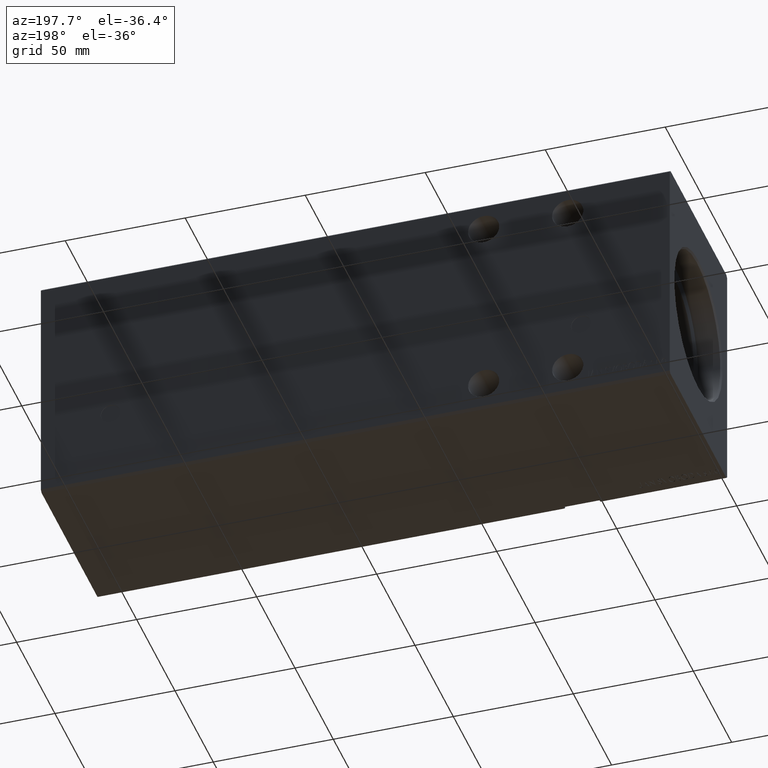
[diagram: clean part render]
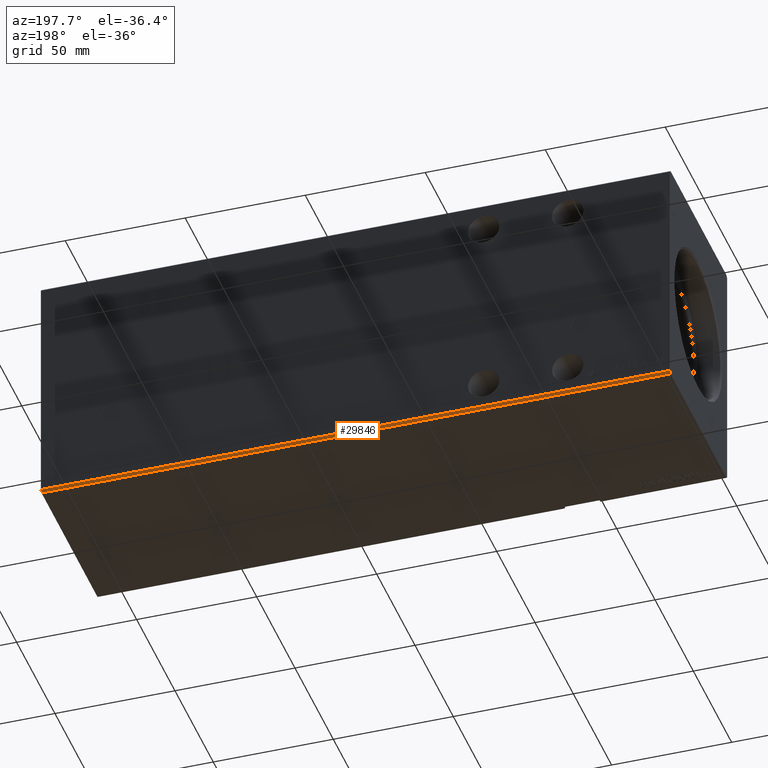
[diagram: same view with one face highlighted and labeled with its STEP entity id]
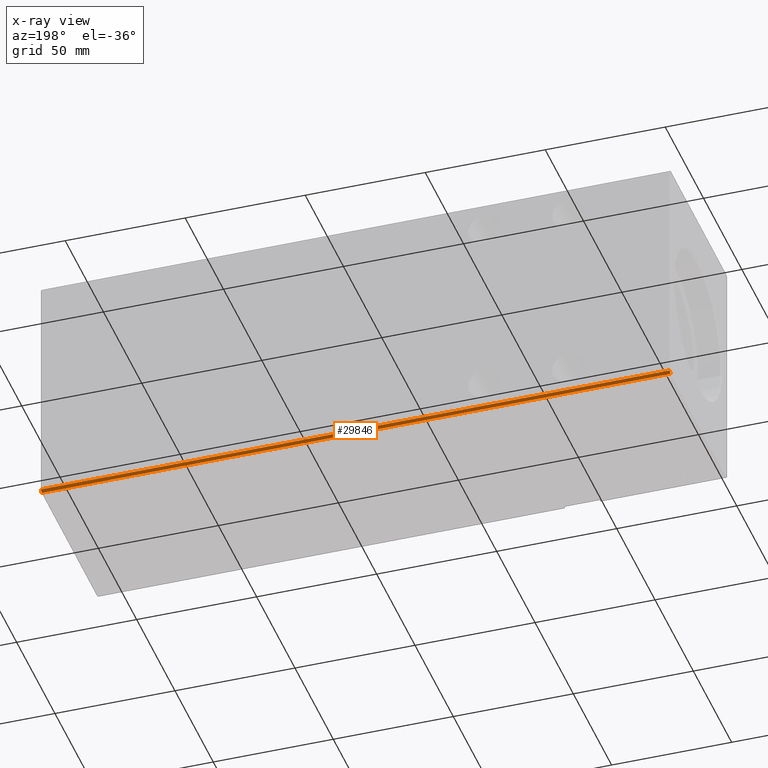
[diagram: x-ray of the same camera — body ghosted, the highlighted face saturated]
A machine part, auxiliary view. The second image highlights one B-rep face of the part: STEP entity #29846.
The next image is the same camera in x-ray: the body ghosted, the highlighted face saturated — about 0% of this face is hidden behind the body in this view.
In plain terms, the highlighted planar face has unit normal (0, -0.7071, 0.7071).
Its self-contained STEP definition (entity closure, byte-faithful):
#1434 = ORIENTED_EDGE ( 'NONE', *, *, #10390, .T. ) ;
#3205 = ORIENTED_EDGE ( 'NONE', *, *, #28127, .F. ) ;
#3431 = DIRECTION ( 'NONE',  ( -1.000000000000000000, -0.000000000000000000, -0.000000000000000000 ) ) ;
#5292 = EDGE_CURVE ( 'NONE', #12894, #12572, #32323, .T. ) ;
#5352 = PLANE ( 'NONE',  #13970 ) ;
#5982 = LINE ( 'NONE', #22327, #14498 ) ;
#8805 = VECTOR ( 'NONE', #3431, 1000.000000000000000 ) ;
#10390 = EDGE_CURVE ( 'NONE', #12572, #35652, #11188, .T. ) ;
#11188 = LINE ( 'NONE', #17357, #40891 ) ;
#11310 = DIRECTION ( 'NONE',  ( 0.000000000000000000, -0.7071067811865475727, 0.7071067811865475727 ) ) ;
#11853 = CARTESIAN_POINT ( 'NONE',  ( 262.0000000000000000, 36.50000000000000711, -50.00000000000000000 ) ) ;
#12572 = VERTEX_POINT ( 'NONE', #39568 ) ;
#12787 = DIRECTION ( 'NONE',  ( -1.000000000000000000, -0.000000000000000000, -0.000000000000000000 ) ) ;
#12894 = VERTEX_POINT ( 'NONE', #23995 ) ;
#13970 = AXIS2_PLACEMENT_3D ( 'NONE', #37229, #11310, #38063 ) ;
#14498 = VECTOR ( 'NONE', #12787, 1000.000000000000000 ) ;
#15342 = FACE_OUTER_BOUND ( 'NONE', #38218, .T. ) ;
#17016 = CARTESIAN_POINT ( 'NONE',  ( 262.0000000000000000, 36.50000000000000711, -50.00000000000000000 ) ) ;
#17357 = CARTESIAN_POINT ( 'NONE',  ( 0.000000000000000000, 36.50000000000000711, -50.00000000000000000 ) ) ;
#18046 = ORIENTED_EDGE ( 'NONE', *, *, #5292, .T. ) ;
#19062 = LINE ( 'NONE', #11853, #32218 ) ;
#22327 = CARTESIAN_POINT ( 'NONE',  ( 262.0000000000000000, 37.50000000000000711, -49.00000000000000000 ) ) ;
#23995 = CARTESIAN_POINT ( 'NONE',  ( 262.0000000000000000, 36.50000000000000711, -50.00000000000000000 ) ) ;
#28127 = EDGE_CURVE ( 'NONE', #12894, #33751, #19062, .T. ) ;
#28413 = DIRECTION ( 'NONE',  ( 0.000000000000000000, 0.7071067811865474617, 0.7071067811865474617 ) ) ;
#29846 = ADVANCED_FACE ( 'NONE', ( #15342 ), #5352, .F. ) ;
#31143 = DIRECTION ( 'NONE',  ( 0.000000000000000000, 0.7071067811865474617, 0.7071067811865474617 ) ) ;
#32218 = VECTOR ( 'NONE', #28413, 1000.000000000000114 ) ;
#32323 = LINE ( 'NONE', #17016, #8805 ) ;
#33751 = VERTEX_POINT ( 'NONE', #37455 ) ;
#35652 = VERTEX_POINT ( 'NONE', #38573 ) ;
#36425 = ORIENTED_EDGE ( 'NONE', *, *, #37554, .F. ) ;
#37229 = CARTESIAN_POINT ( 'NONE',  ( 262.0000000000000000, 36.50000000000000711, -50.00000000000000000 ) ) ;
#37455 = CARTESIAN_POINT ( 'NONE',  ( 262.0000000000000000, 37.50000000000000711, -49.00000000000000000 ) ) ;
#37554 = EDGE_CURVE ( 'NONE', #33751, #35652, #5982, .T. ) ;
#38063 = DIRECTION ( 'NONE',  ( 0.000000000000000000, -0.7071067811865474617, -0.7071067811865474617 ) ) ;
#38218 = EDGE_LOOP ( 'NONE', ( #1434, #36425, #3205, #18046 ) ) ;
#38573 = CARTESIAN_POINT ( 'NONE',  ( 0.000000000000000000, 37.50000000000000711, -49.00000000000000000 ) ) ;
#39568 = CARTESIAN_POINT ( 'NONE',  ( 0.000000000000000000, 36.50000000000000711, -50.00000000000000000 ) ) ;
#40891 = VECTOR ( 'NONE', #31143, 1000.000000000000114 ) ;